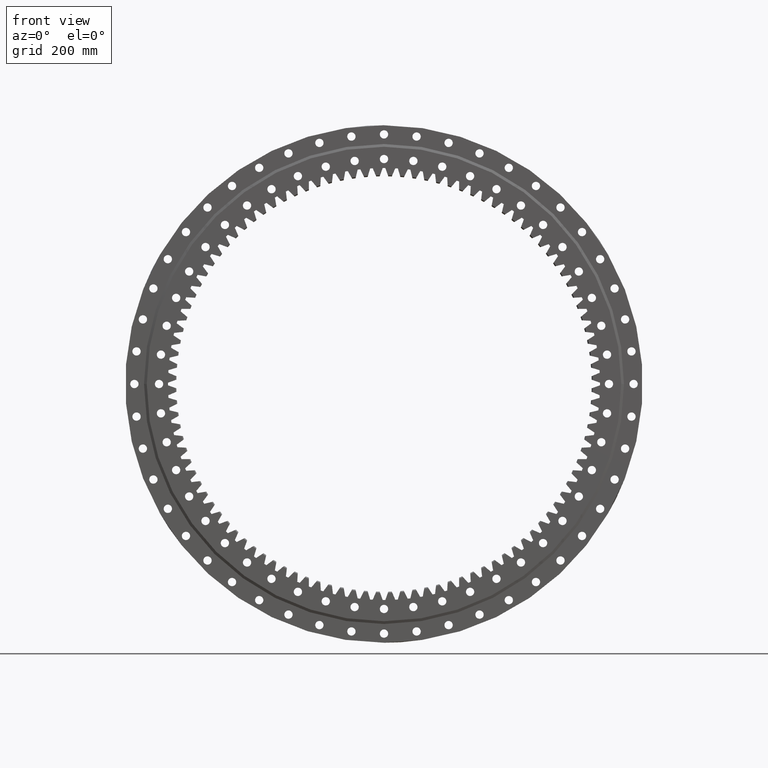
[diagram: clean part render]
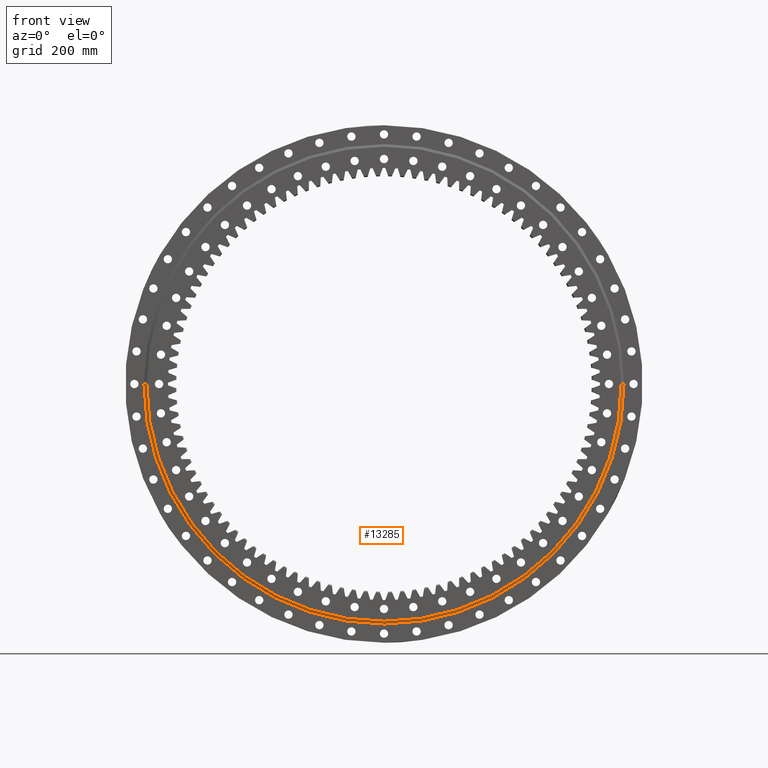
[diagram: same view with one face highlighted and labeled with its STEP entity id]
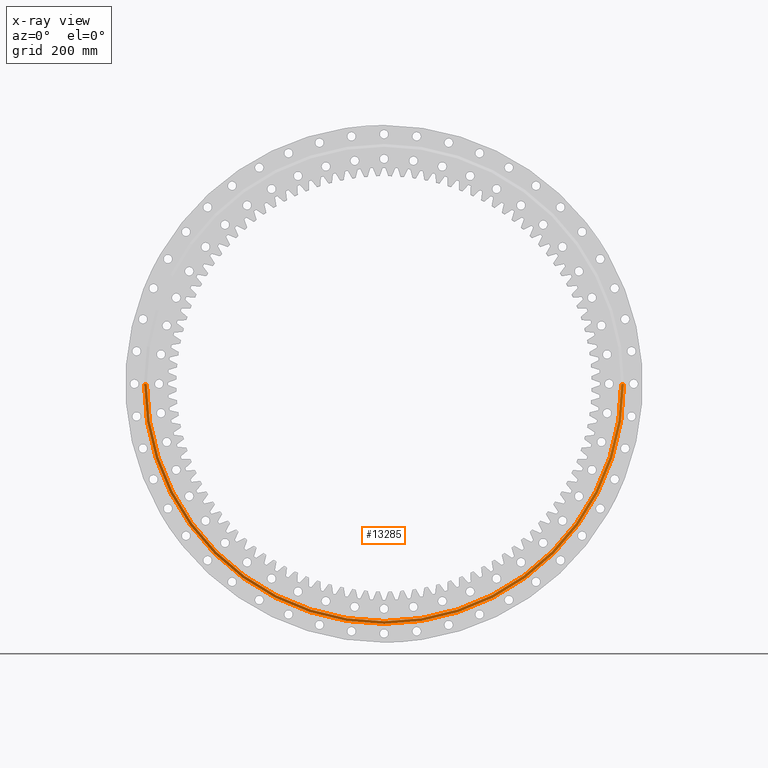
[diagram: x-ray of the same camera — body ghosted, the highlighted face saturated]
A machine part, front view. The second image highlights one B-rep face of the part: STEP entity #13285.
The next image is the same camera in x-ray: the body ghosted, the highlighted face saturated — about 0% of this face is hidden behind the body in this view.
In plain terms, the highlighted conical surface has half-angle 63.206 deg.
Its self-contained STEP definition (entity closure, byte-faithful):
#419 = AXIS2_PLACEMENT_3D ( 'NONE', #22127, #22031, #22166 ) ;
#798 = ORIENTED_EDGE ( 'NONE', *, *, #7142, .F. ) ;
#2726 = DIRECTION ( 'NONE',  ( -0.8926347946143795600, 0.4507805712802452900, 0.0000000000000000000 ) ) ;
#3358 = VERTEX_POINT ( 'NONE', #7713 ) ;
#4133 = CARTESIAN_POINT ( 'NONE',  ( -867.2775000000001500, -40.00000000000001400, 0.0000000000000000000 ) ) ;
#5003 = VERTEX_POINT ( 'NONE', #12977 ) ;
#5067 = ORIENTED_EDGE ( 'NONE', *, *, #23898, .F. ) ;
#6324 = DIRECTION ( 'NONE',  ( 1.836909530733565900E-016, 1.000000000000000000, -0.0000000000000000000 ) ) ;
#7142 = EDGE_CURVE ( 'NONE', #5003, #11546, #11402, .T. ) ;
#7713 = CARTESIAN_POINT ( 'NONE',  ( -857.2775000000001500, -45.04999999999983400, 0.0000000000000000000 ) ) ;
#7874 = CONICAL_SURFACE ( 'NONE', #24084, 857.2775000000001500, 1.103156723031682300 ) ;
#8312 = CIRCLE ( 'NONE', #419, 857.2775000000001500 ) ;
#10271 = AXIS2_PLACEMENT_3D ( 'NONE', #12270, #12139, #12313 ) ;
#11402 = LINE ( 'NONE', #13937, #23904 ) ;
#11546 = VERTEX_POINT ( 'NONE', #18336 ) ;
#12139 = DIRECTION ( 'NONE',  ( 1.836909530733565900E-016, 1.000000000000000000, -0.0000000000000000000 ) ) ;
#12270 = CARTESIAN_POINT ( 'NONE',  ( -1.116521225976662500E-014, -40.00000000000017800, 0.0000000000000000000 ) ) ;
#12313 = DIRECTION ( 'NONE',  ( -1.000000000000000000, 1.840178717767568300E-016, 0.0000000000000000000 ) ) ;
#12937 = VECTOR ( 'NONE', #2726, 1000.000000000000200 ) ;
#12977 = CARTESIAN_POINT ( 'NONE',  ( 857.2775000000001500, -45.05000000000015300, 1.055985380351782000E-013 ) ) ;
#13285 = ADVANCED_FACE ( 'NONE', ( #21919 ), #7874, .T. ) ;
#13410 = DIRECTION ( 'NONE',  ( 0.8926347946143797800, 0.4507805712802449600, 1.093162344032055100E-016 ) ) ;
#13937 = CARTESIAN_POINT ( 'NONE',  ( 857.2775000000001500, -45.05000000000015300, 1.049862146356045200E-013 ) ) ;
#14920 = EDGE_LOOP ( 'NONE', ( #798, #15880, #24666, #5067 ) ) ;
#15880 = ORIENTED_EDGE ( 'NONE', *, *, #23065, .T. ) ;
#16846 = EDGE_CURVE ( 'NONE', #3358, #24197, #19598, .T. ) ;
#17248 = CIRCLE ( 'NONE', #10271, 867.2775000000001500 ) ;
#17679 = CARTESIAN_POINT ( 'NONE',  ( -857.2775000000001500, -45.04999999999983400, 0.0000000000000000000 ) ) ;
#18336 = CARTESIAN_POINT ( 'NONE',  ( 867.2775000000001500, -40.00000000000033400, 1.062108614347518700E-013 ) ) ;
#19598 = LINE ( 'NONE', #17679, #12937 ) ;
#21919 = FACE_OUTER_BOUND ( 'NONE', #14920, .T. ) ;
#22031 = DIRECTION ( 'NONE',  ( 1.836909530733565900E-016, 1.000000000000000000, -0.0000000000000000000 ) ) ;
#22127 = CARTESIAN_POINT ( 'NONE',  ( -1.209285157278704400E-014, -45.04999999999999000, 0.0000000000000000000 ) ) ;
#22166 = DIRECTION ( 'NONE',  ( -1.000000000000000000, 1.861644097621437900E-016, 0.0000000000000000000 ) ) ;
#22366 = CARTESIAN_POINT ( 'NONE',  ( -1.209285157278704400E-014, -45.04999999999999000, 0.0000000000000000000 ) ) ;
#23065 = EDGE_CURVE ( 'NONE', #5003, #3358, #8312, .T. ) ;
#23898 = EDGE_CURVE ( 'NONE', #11546, #24197, #17248, .T. ) ;
#23904 = VECTOR ( 'NONE', #13410, 1000.000000000000000 ) ;
#24084 = AXIS2_PLACEMENT_3D ( 'NONE', #22366, #6324, #27275 ) ;
#24197 = VERTEX_POINT ( 'NONE', #4133 ) ;
#24666 = ORIENTED_EDGE ( 'NONE', *, *, #16846, .T. ) ;
#27275 = DIRECTION ( 'NONE',  ( -1.000000000000000000, 1.861644097621437900E-016, 0.0000000000000000000 ) ) ;